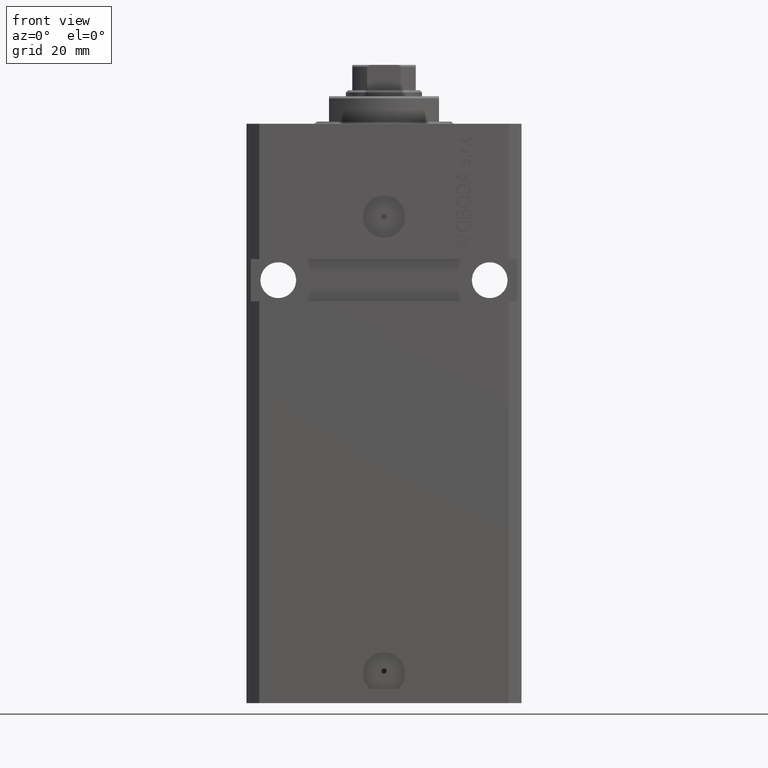
[diagram: clean part render]
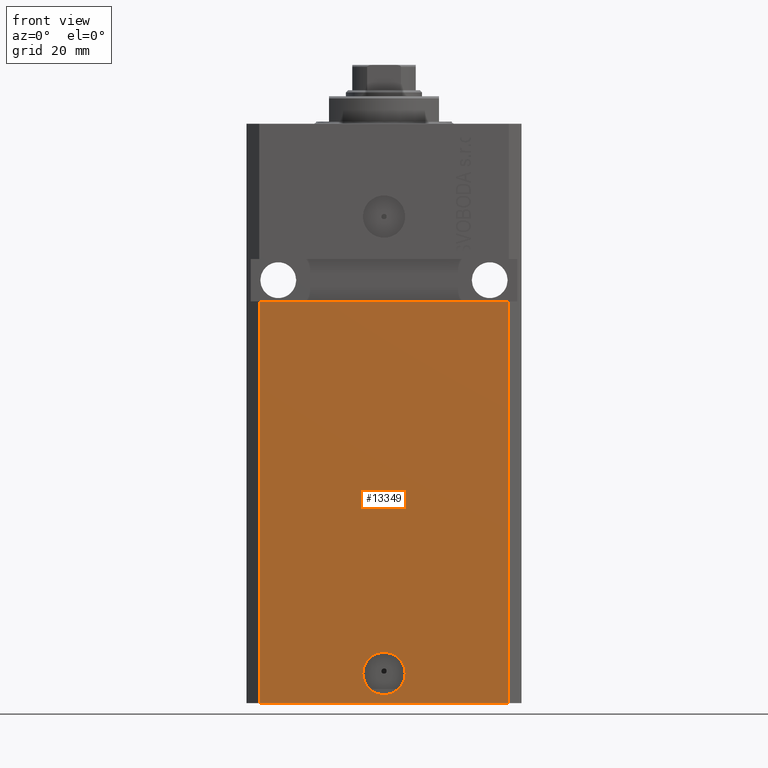
[diagram: same view with one face highlighted and labeled with its STEP entity id]
A machine part, front view. The second image highlights one B-rep face of the part: STEP entity #13349.
In plain terms, the highlighted planar face has unit normal (0, -1, 0).
Its self-contained STEP definition (entity closure, byte-faithful):
#881 = LINE ( 'NONE', #11143, #6412 ) ;
#1068 = VECTOR ( 'NONE', #38122, 1000.000000000000000 ) ;
#2387 = EDGE_CURVE ( 'NONE', #9728, #2917, #10193, .T. ) ;
#2917 = VERTEX_POINT ( 'NONE', #25840 ) ;
#3185 = EDGE_CURVE ( 'NONE', #15427, #20734, #19767, .T. ) ;
#3410 = FACE_BOUND ( 'NONE', #18292, .T. ) ;
#3867 = DIRECTION ( 'NONE',  ( 0.000000000000000000, 0.000000000000000000, 1.000000000000000000 ) ) ;
#4114 = LINE ( 'NONE', #14162, #11774 ) ;
#4126 = EDGE_CURVE ( 'NONE', #15427, #17854, #4114, .T. ) ;
#4138 = CIRCLE ( 'NONE', #46071, 5.000000000000006217 ) ;
#4936 = DIRECTION ( 'NONE',  ( 1.176083712526788232E-16, -1.000000000000000000, 0.000000000000000000 ) ) ;
#5198 = EDGE_LOOP ( 'NONE', ( #44012, #31569, #32804, #15848 ) ) ;
#5262 = CARTESIAN_POINT ( 'NONE',  ( 29.49999999999650413, -22.49999999999949196, -137.0000000000000000 ) ) ;
#5404 = CARTESIAN_POINT ( 'NONE',  ( 2.646188353185214061E-15, -22.49999999999949551, -130.0000000000000000 ) ) ;
#6068 = ORIENTED_EDGE ( 'NONE', *, *, #41810, .F. ) ;
#6412 = VECTOR ( 'NONE', #14977, 1000.000000000000000 ) ;
#7949 = DIRECTION ( 'NONE',  ( 1.176083712526788232E-16, -1.000000000000000000, 0.000000000000000000 ) ) ;
#8612 = CARTESIAN_POINT ( 'NONE',  ( -29.49999999999650413, -22.49999999999949907, -41.99999999999999289 ) ) ;
#9728 = VERTEX_POINT ( 'NONE', #15412 ) ;
#10193 = CIRCLE ( 'NONE', #27009, 5.000000000000006217 ) ;
#11085 = DIRECTION ( 'NONE',  ( 1.000000000000000000, 1.067522139062765303E-16, 1.067522139062765303E-16 ) ) ;
#11143 = CARTESIAN_POINT ( 'NONE',  ( 29.49999999999650413, -22.49999999999949196, -137.0000000000000000 ) ) ;
#11208 = AXIS2_PLACEMENT_3D ( 'NONE', #22034, #7949, #43972 ) ;
#11774 = VECTOR ( 'NONE', #3867, 1000.000000000000000 ) ;
#12114 = DIRECTION ( 'NONE',  ( 1.000000000000000000, 0.000000000000000000, 0.000000000000000000 ) ) ;
#13349 = ADVANCED_FACE ( 'NONE', ( #3410, #29430 ), #25611, .T. ) ;
#14162 = CARTESIAN_POINT ( 'NONE',  ( -29.49999999999650413, -22.49999999999949907, -137.0000000000000000 ) ) ;
#14977 = DIRECTION ( 'NONE',  ( 0.000000000000000000, 0.000000000000000000, 1.000000000000000000 ) ) ;
#15412 = CARTESIAN_POINT ( 'NONE',  ( 5.000000000000008882, -22.49999999999949551, -130.0000000000000000 ) ) ;
#15427 = VERTEX_POINT ( 'NONE', #18626 ) ;
#15848 = ORIENTED_EDGE ( 'NONE', *, *, #42243, .T. ) ;
#17854 = VERTEX_POINT ( 'NONE', #8612 ) ;
#18292 = EDGE_LOOP ( 'NONE', ( #24762, #6068 ) ) ;
#18626 = CARTESIAN_POINT ( 'NONE',  ( -29.49999999999650413, -22.49999999999949907, -137.0000000000000000 ) ) ;
#19767 = LINE ( 'NONE', #38591, #1068 ) ;
#20734 = VERTEX_POINT ( 'NONE', #5262 ) ;
#21831 = LINE ( 'NONE', #43766, #39971 ) ;
#22034 = CARTESIAN_POINT ( 'NONE',  ( -29.49999999999650413, -22.49999999999949907, -137.0000000000000000 ) ) ;
#24762 = ORIENTED_EDGE ( 'NONE', *, *, #2387, .F. ) ;
#25611 = PLANE ( 'NONE',  #11208 ) ;
#25641 = CARTESIAN_POINT ( 'NONE',  ( 2.646188353185214061E-15, -22.49999999999949551, -130.0000000000000000 ) ) ;
#25840 = CARTESIAN_POINT ( 'NONE',  ( -5.000000000000003553, -22.49999999999949551, -130.0000000000000000 ) ) ;
#27009 = AXIS2_PLACEMENT_3D ( 'NONE', #5404, #4936, #12114 ) ;
#28988 = DIRECTION ( 'NONE',  ( 1.176083712526788232E-16, -1.000000000000000000, 0.000000000000000000 ) ) ;
#29430 = FACE_OUTER_BOUND ( 'NONE', #5198, .T. ) ;
#29703 = DIRECTION ( 'NONE',  ( 1.000000000000000000, 0.000000000000000000, 0.000000000000000000 ) ) ;
#31569 = ORIENTED_EDGE ( 'NONE', *, *, #4126, .F. ) ;
#32804 = ORIENTED_EDGE ( 'NONE', *, *, #3185, .T. ) ;
#38122 = DIRECTION ( 'NONE',  ( 1.000000000000000000, 1.176083712526788232E-16, 0.000000000000000000 ) ) ;
#38591 = CARTESIAN_POINT ( 'NONE',  ( -29.49999999999650413, -22.49999999999949907, -137.0000000000000000 ) ) ;
#39897 = CARTESIAN_POINT ( 'NONE',  ( 29.49999999999650058, -22.49999999999949196, -41.99999999999998579 ) ) ;
#39971 = VECTOR ( 'NONE', #11085, 1000.000000000000000 ) ;
#41346 = VERTEX_POINT ( 'NONE', #39897 ) ;
#41810 = EDGE_CURVE ( 'NONE', #2917, #9728, #4138, .T. ) ;
#41853 = EDGE_CURVE ( 'NONE', #17854, #41346, #21831, .T. ) ;
#42243 = EDGE_CURVE ( 'NONE', #20734, #41346, #881, .T. ) ;
#43766 = CARTESIAN_POINT ( 'NONE',  ( -32.49999999999650413, -22.49999999999949907, -41.99999999999999289 ) ) ;
#43972 = DIRECTION ( 'NONE',  ( 1.000000000000000000, 1.176083712526788232E-16, 0.000000000000000000 ) ) ;
#44012 = ORIENTED_EDGE ( 'NONE', *, *, #41853, .F. ) ;
#46071 = AXIS2_PLACEMENT_3D ( 'NONE', #25641, #28988, #29703 ) ;